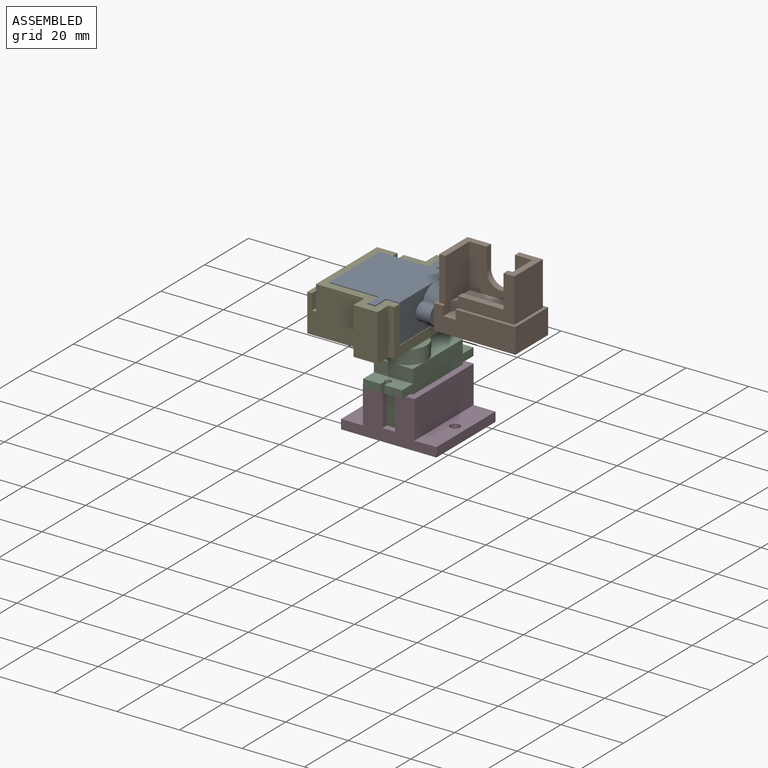
[diagram: assembled view]
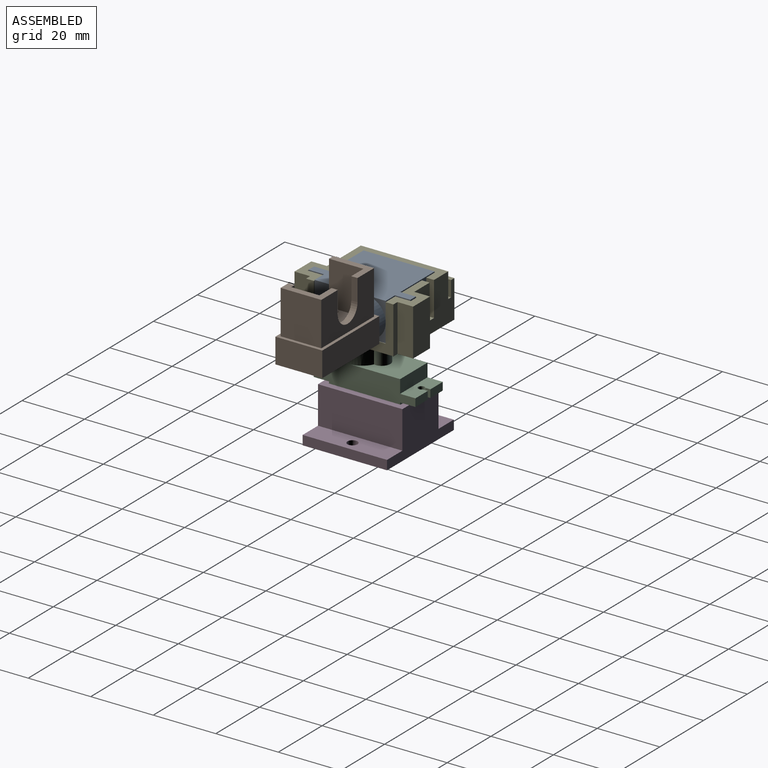
[diagram: assembled view, second angle]
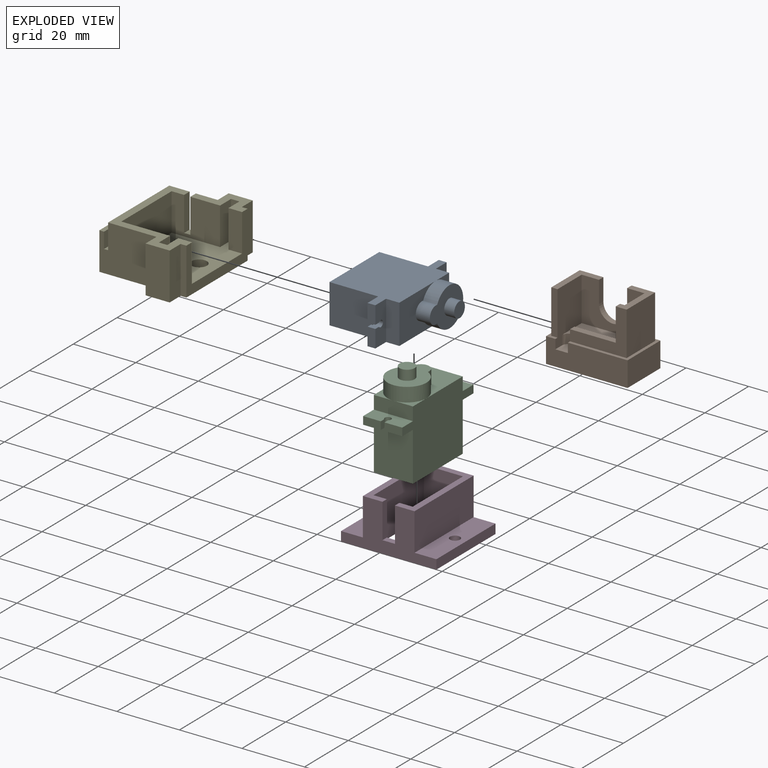
[diagram: exploded view]
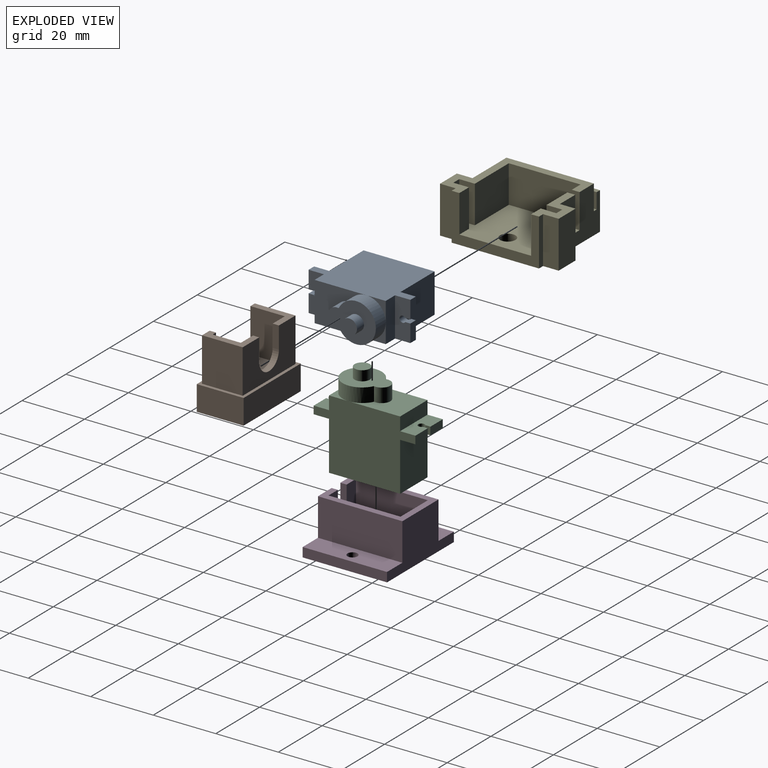
[diagram: exploded view, second angle]
ASSEMBLY  parts=5 mates=4
PART A: 29 faces, bbox 32.6x30.1x12.5 mm
  f0: plane 5.65x2.5mm, normal (-1,0,0), area 14.1mm2, adj f2,f9,f17,f27
  f1: plane 5.65x2.5mm, normal (1,0,0), area 14.1mm2, adj f3,f12,f17,f25
  f2: plane 12.5x4.9mm, normal (0,1,0), area 56.2mm2, adj f0,f7,f8,f16,f17,f26,f27,f28
  f3: plane 12.5x4.9mm, normal (0,1,0), area 56.2mm2, adj f1,f13,f14,f16,f17,f23,f24,f25
  f4: plane 16.5x12.5mm, normal (0,-1,0), area 131.9mm2, adj f10,f16,f17,f18,f19
  f5: plane 6.25x6.25mm, normal (0,-1,0), area 8.4mm2, adj f11,f16,f18
  f6: plane 6.25x6.25mm, normal (0,-1,0), area 8.4mm2, adj f11,f17,f18
  f7: plane 15.6x12.5mm, normal (-1,0,0), area 195mm2, adj f2,f15,f16,f17
  f8: plane 5.65x2.5mm, normal (-1,0,0), area 14.1mm2, adj f2,f9,f16,f26
  f9: plane 12.5x4.9mm, normal (0,-1,0), area 56.2mm2, adj f0,f8,f10,f16,f17,f26,f27,f28
  f10: plane 12.5x4.25mm, normal (-1,0,0), area 53.1mm2, adj f4,f9,f16,f17
  f11: plane 12.5x4.25mm, normal (1,0,0), area 53.1mm2, adj f5,f6,f12,f16,f17
  f12: plane 12.5x4.9mm, normal (0,-1,0), area 56.2mm2, adj f1,f11,f13,f16,f17,f23,f24,f25
  f13: plane 5.65x2.5mm, normal (1,0,0), area 14.1mm2, adj f3,f12,f16,f23
  f14: plane 15.6x12.5mm, normal (1,0,0), area 195mm2, adj f3,f15,f16,f17
  f15: plane 22.75x12.5mm, normal (0,1,0), area 284.4mm2, adj f7,f14,f16,f17
  f16: plane 32.55x22.35mm, normal (0,0,1), area 533mm2, adj f2,f3,f4,f5,f7,f8,f9,f10
  f17: plane 32.55x22.35mm, normal (0,0,-1), area 533mm2, adj f0,f1,f2,f3,f4,f6,f7,f9
  f18: cylinder r=6.25mm len=12.5mm, axis (0,1,0), area 151.8mm2, adj f4,f5,f6,f19,f20
  f19: cylinder r=2.75mm len=5.5mm, axis (0,1,0), area 44.4mm2, adj f4,f18,f20
  f20: plane 15.25x12.5mm, normal (0,-1,0), area 116.9mm2, adj f18,f19,f21
  f21: cylinder r=2.45mm len=4.9mm, axis (0,1,0), area 49.3mm2, adj f20,f22
  f22: plane 4.9x4.9mm, normal (0,-1,0), area 18.9mm2, adj f21
  f23: plane 2.5x1.62mm, normal (0,0,-1), area 4mm2, adj f3,f12,f13,f24
  f24: cylinder r=1.03mm len=2.5mm, axis (0,-1,0), area 12.9mm2, adj f3,f12,f23,f25
  f25: plane 2.5x1.62mm, normal (0,0,1), area 4mm2, adj f1,f3,f12,f24
  f26: plane 2.5x1.62mm, normal (0,0,-1), area 4mm2, adj f2,f8,f9,f28
  f27: plane 2.5x1.62mm, normal (0,0,1), area 4mm2, adj f0,f2,f9,f28
  f28: cylinder r=1.03mm len=2.5mm, axis (0,-1,0), area 12.9mm2, adj f2,f9,f26,f27
PART B: 28 faces, bbox 26.1x15x22 mm
  f0: plane 17x12mm, normal (-1,0,0), area 163mm2, adj f6,f7,f8,f9,f14,f19,f20,f25
  f1: plane 6.5x3mm, normal (1,0,0), area 16mm2, adj f2,f3,f4,f8,f19,f20,f25
  f2: plane 18.1x14mm, normal (0,1,0), area 100.1mm2, adj f1,f4,f5,f8,f10,f18
  f3: plane 16.1x14mm, normal (0,-1,0), area 72.1mm2, adj f1,f4,f5,f13,f14,f18
  f4: plane 14.6x2mm, normal (0,0,1), area 29.2mm2, adj f1,f2,f3,f18
  f5: plane 13x7.55mm, normal (0,0,1), area 40.1mm2, adj f2,f3,f9,f10,f11,f13,f17,f18
  f6: plane 14x2mm, normal (0,1,0), area 28mm2, adj f0,f7,f8,f12
  f7: plane 13x7.55mm, normal (0,0,1), area 37.1mm2, adj f0,f6,f9,f11,f12,f16
  f8: plane 26.1x15mm, normal (0,0,1), area 74.2mm2, adj f0,f1,f2,f6,f10,f11,f12,f20
  f9: plane 20.1x14mm, normal (0,1,0), area 186.6mm2, adj f0,f5,f7,f13,f14,f15,f16,f17
  f10: plane 14x13mm, normal (-1,0,0), area 182mm2, adj f2,f5,f8,f11
  f11: plane 24.1x14mm, normal (0,-1,0), area 242.6mm2, adj f5,f7,f8,f10,f12,f15,f16,f17
  f12: plane 14x13mm, normal (1,0,0), area 182mm2, adj f6,f7,f8,f11
  f13: plane 14x9mm, normal (1,0,0), area 126mm2, adj f3,f5,f9,f14
  f14: plane 20.1x9mm, normal (0,0,1), area 174.6mm2, adj f0,f3,f9,f13,f19
  f15: cylinder r=4.5mm len=9mm, axis (0,-1,0), area 28.3mm2, adj f9,f11,f16,f17
  f16: plane 7x2mm, normal (-1,0,0), area 14mm2, adj f7,f9,f11,f15
  f17: plane 7x2mm, normal (1,0,0), area 14mm2, adj f5,f9,f11,f15
  f18: plane 10.5x2mm, normal (1,0,0), area 21mm2, adj f2,f3,f4,f5
  f19: cylinder r=2mm len=4mm, axis (0,0,1), area 18.8mm2, adj f0,f1,f14,f25
  f20: plane 26.1x8mm, normal (0,1,0), area 196.8mm2, adj f0,f1,f8,f21,f22,f24,f25
  f21: plane 15x8mm, normal (-1,0,0), area 120mm2, adj f8,f20,f23,f24
  f22: plane 15x8mm, normal (1,0,0), area 101.9mm2, adj f8,f20,f23,f24,f26
  f23: plane 26.1x8mm, normal (0,-1,0), area 208.8mm2, adj f8,f21,f22,f24
  f24: plane 26.1x15mm, normal (0,0,-1), area 391.5mm2, adj f20,f21,f22,f23
  f25: plane 5x4mm, normal (0,0,1), area 18.3mm2, adj f0,f1,f19,f20
  f26: cylinder r=2.4mm len=5mm, axis (1,0,0), area 75.4mm2, adj f22,f27
  f27: plane 4.8x4.8mm, normal (1,0,0), area 18.1mm2, adj f26
PART C: same geometry as A
PART D: 19 faces, bbox 30.5x27x15 mm
  f0: plane 30.5x15mm, normal (0,-1,0), area 245.1mm2, adj f3,f5,f6,f7,f10,f12,f14,f15
  f1: plane 15x12.5mm, normal (0,1,0), area 143.1mm2, adj f6,f9,f11,f12,f16,f17,f18
  f2: plane 30.5x15mm, normal (0,1,0), area 289.5mm2, adj f3,f5,f6,f7,f10,f12,f14,f15
  f3: plane 27x3mm, normal (-1,0,0), area 81mm2, adj f0,f2,f5,f6
  f4: cylinder r=1.6mm len=3.2mm, axis (0,0,-1), area 30.2mm2, adj f5,f6
  f5: plane 27x7mm, normal (0,0,1), area 181mm2, adj f0,f2,f3,f4,f7
  f6: plane 30.5x27mm, normal (0,0,-1), area 519.9mm2, adj f0,f1,f2,f3,f4,f8,f9,f11
  f7: plane 27x12mm, normal (-1,0,0), area 324mm2, adj f0,f2,f5,f12
  f8: plane 15x12.5mm, normal (0,-1,0), area 187.5mm2, adj f6,f9,f11,f12
  f9: plane 23x15mm, normal (-1,0,0), area 345mm2, adj f1,f6,f8,f12
  f10: plane 27x12mm, normal (1,0,0), area 324mm2, adj f0,f2,f12,f15
  f11: plane 23x15mm, normal (1,0,0), area 345mm2, adj f1,f6,f8,f12
  f12: plane 27x16.5mm, normal (0,0,1), area 150mm2, adj f0,f1,f2,f7,f8,f9,f10,f11
  f13: cylinder r=1.6mm len=3.2mm, axis (0,0,-1), area 30.2mm2, adj f6,f15
  f14: plane 27x3mm, normal (1,0,0), area 81mm2, adj f0,f2,f6,f15
  f15: plane 27x7mm, normal (0,0,1), area 181mm2, adj f0,f2,f10,f13,f14
  f16: plane 11.1x2mm, normal (-1,0,0), area 22.2mm2, adj f0,f1,f12,f18
  f17: plane 11.1x2mm, normal (1,0,0), area 22.2mm2, adj f0,f1,f12,f18
  f18: plane 4x2mm, normal (0,0,1), area 8mm2, adj f0,f1,f16,f17
PART E: 35 faces, bbox 27.9x38x15 mm
  f0: plane 16.55x7.5mm, normal (0,0,1), area 66.4mm2, adj f1,f2,f5,f8,f9,f10,f11,f12
  f1: plane 18.3x15mm, normal (0,1,0), area 237.6mm2, adj f0,f4,f13,f14,f26,f27,f28,f29
  f2: plane 27.95x15mm, normal (1,0,0), area 143.8mm2, adj f0,f3,f4,f9,f10,f19,f20,f26
  f3: plane 32.95x22.55mm, normal (0,0,1), area 525.3mm2, adj f2,f5,f6,f7,f8,f9,f20,f21
  f4: plane 37.95x27.85mm, normal (0,0,-1), area 836.2mm2, adj f1,f2,f10,f11,f12,f13,f15,f16
  f5: plane 12x2.7mm, normal (0,-1,0), area 32.4mm2, adj f0,f3,f8,f25
  f6: plane 22.95x12mm, normal (1,0,0), area 275.4mm2, adj f3,f23,f24,f26
  f7: plane 12x2.7mm, normal (0,1,0), area 32.4mm2, adj f3,f21,f22,f26
  f8: plane 12x5mm, normal (-1,0,0), area 60mm2, adj f0,f3,f5,f9
  f9: plane 12x4.35mm, normal (0,-1,0), area 52.2mm2, adj f0,f2,f3,f8
  f10: plane 15x1.85mm, normal (0,1,0), area 27.8mm2, adj f0,f2,f4,f11
  f11: plane 15x5mm, normal (1,0,0), area 75mm2, adj f0,f4,f10,f12
  f12: plane 15x7.7mm, normal (0,1,0), area 115.5mm2, adj f0,f4,f11,f13
  f13: plane 15x5mm, normal (-1,0,0), area 75mm2, adj f0,f1,f4,f12
  f14: plane 27.95x8mm, normal (-1,0,0), area 223.6mm2, adj f1,f15,f26,f31
  f15: plane 18.3x15mm, normal (0,-1,0), area 259.6mm2, adj f4,f14,f16,f26,f31,f32,f33,f34
  f16: plane 15x5mm, normal (-1,0,0), area 75mm2, adj f4,f15,f17,f26
  f17: plane 15x7.7mm, normal (0,-1,0), area 115.5mm2, adj f4,f16,f18,f26
  f18: plane 15x5mm, normal (1,0,0), area 75mm2, adj f4,f17,f19,f26
  f19: plane 15x1.85mm, normal (0,-1,0), area 27.8mm2, adj f2,f4,f18,f26
  f20: plane 12x4.35mm, normal (0,1,0), area 52.2mm2, adj f2,f3,f21,f26
  f21: plane 12x5mm, normal (-1,0,0), area 60mm2, adj f3,f7,f20,f26
  f22: plane 12x5mm, normal (1,0,0), area 60mm2, adj f3,f7,f23,f26
  f23: plane 15.5x12mm, normal (0,1,0), area 186mm2, adj f3,f6,f22,f26
  f24: plane 15.5x12mm, normal (0,-1,0), area 164mm2, adj f0,f3,f6,f25,f26,f27,f28,f29
  f25: plane 12x5mm, normal (1,0,0), area 60mm2, adj f0,f3,f5,f24
  f26: plane 32.95x25.05mm, normal (0,0,1), area 161.2mm2, adj f1,f2,f6,f7,f14,f15,f16,f17
  f27: plane 11x2.5mm, normal (1,0,0), area 27.5mm2, adj f1,f24,f26,f29
  f28: plane 11x2.5mm, normal (-1,0,0), area 27.5mm2, adj f0,f1,f24,f29
  f29: plane 2.5x2mm, normal (0,0,1), area 5mm2, adj f1,f24,f27,f28
  f30: cylinder r=2.48mm len=4.95mm, axis (0,0,1), area 46.7mm2, adj f3,f4
  f31: plane 27.95x1.3mm, normal (0,0,1), area 36.3mm2, adj f1,f14,f15,f32
  f32: plane 27.95x5mm, normal (1,0,0), area 139.8mm2, adj f1,f15,f31,f34
  f33: plane 27.95x12mm, normal (-1,0,0), area 335.4mm2, adj f1,f4,f15,f34
  f34: plane 27.95x1.5mm, normal (0,0,1), area 41.9mm2, adj f1,f15,f32,f33
PLACE A rot(axis=(0,0,1),90deg) t=(38.9,26.02,20.53)mm
PLACE B rot(axis=(0,0,1),180deg) t=(67.82,31.15,30.78)mm
PLACE C rot(axis=(-0.58,0.58,-0.58),120deg) t=(38.32,31.15,0.9)mm
PLACE D t=(44.57,31.15,-10.27)mm
PLACE E t=(39,26.02,17.78)mm
MATE fastened A.f15 <-> E.f6  axis (-1,0,0) through (27.72,26.02,26.78)mm
MATE revolute C.f18 <-> E.f30  axis (0,0,1) through (44.57,26.02,19.78)mm
MATE revolute B.f26 <-> A.f18  axis (-1,0,0) through (59.77,31.15,26.78)mm
MATE fastened C.f15 <-> D.f6  axis (0,0,-1) through (44.57,31.15,-10.27)mm
